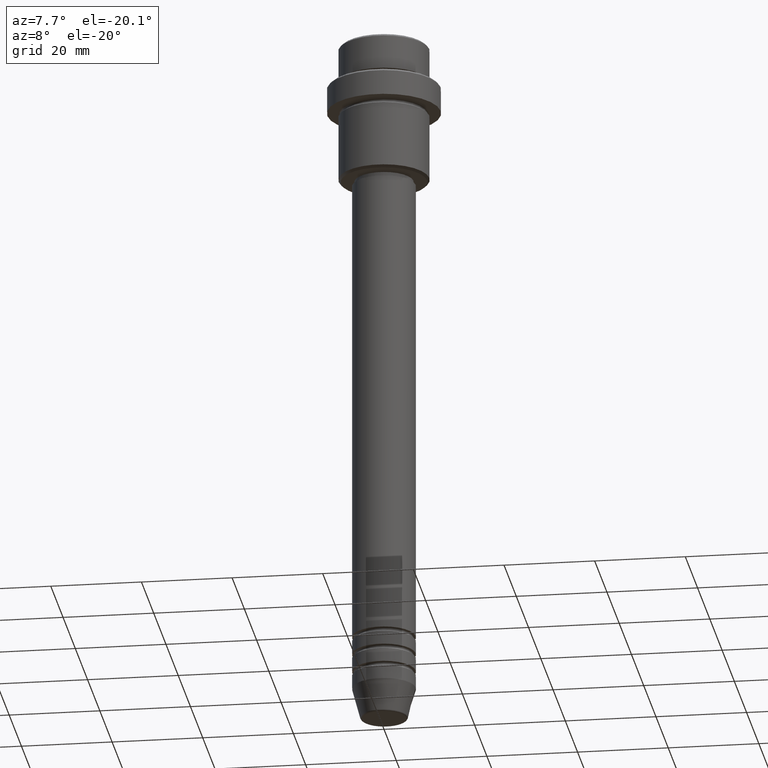
[diagram: clean part render]
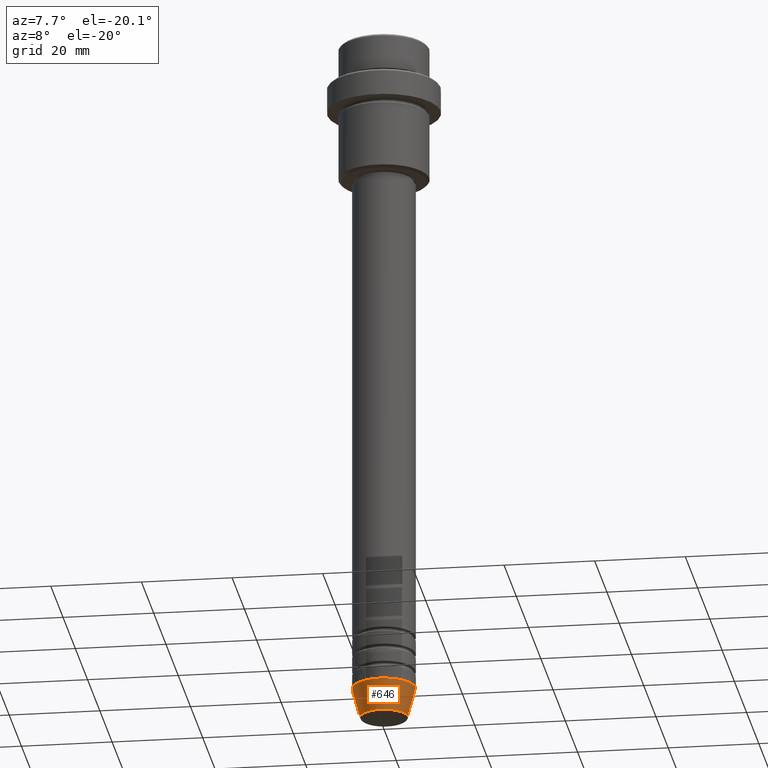
[diagram: same view with one face highlighted and labeled with its STEP entity id]
A machine part, auxiliary view. The second image highlights one B-rep face of the part: STEP entity #646.
In plain terms, the highlighted conical surface has half-angle 15 deg.
Its self-contained STEP definition (entity closure, byte-faithful):
#37 = CIRCLE ( 'NONE', #495, 5.223655072137196598 ) ;
#67 = VERTEX_POINT ( 'NONE', #747 ) ;
#76 = CARTESIAN_POINT ( 'NONE',  ( 0.000000000000000000, 0.000000000000000000, -149.0000000000000000 ) ) ;
#106 = CONICAL_SURFACE ( 'NONE', #1072, 7.000000000000000000, 0.2617993877991500740 ) ;
#205 = LINE ( 'NONE', #430, #340 ) ;
#305 = DIRECTION ( 'NONE',  ( -0.000000000000000000, -0.000000000000000000, 1.000000000000000000 ) ) ;
#332 = EDGE_CURVE ( 'NONE', #852, #1339, #37, .T. ) ;
#340 = VECTOR ( 'NONE', #1302, 1000.000000000000000 ) ;
#400 = DIRECTION ( 'NONE',  ( 1.000000000000000000, 0.000000000000000000, 0.000000000000000000 ) ) ;
#430 = CARTESIAN_POINT ( 'NONE',  ( -7.000000000000000000, 8.572527594031473190E-16, -149.0000000000000000 ) ) ;
#495 = AXIS2_PLACEMENT_3D ( 'NONE', #644, #305, #400 ) ;
#497 = AXIS2_PLACEMENT_3D ( 'NONE', #1382, #1149, #835 ) ;
#509 = FACE_OUTER_BOUND ( 'NONE', #915, .T. ) ;
#549 = DIRECTION ( 'NONE',  ( 0.2588190451025213501, 0.000000000000000000, 0.9659258262890680902 ) ) ;
#576 = ORIENTED_EDGE ( 'NONE', *, *, #663, .T. ) ;
#584 = CARTESIAN_POINT ( 'NONE',  ( -7.000000000000000000, 8.572527594031473190E-16, -149.0000000000000000 ) ) ;
#605 = EDGE_CURVE ( 'NONE', #778, #67, #1053, .T. ) ;
#644 = CARTESIAN_POINT ( 'NONE',  ( 0.000000000000000000, 0.000000000000000000, -155.6294095225512137 ) ) ;
#646 = ADVANCED_FACE ( 'NONE', ( #509 ), #106, .T. ) ;
#663 = EDGE_CURVE ( 'NONE', #1339, #67, #777, .T. ) ;
#719 = VECTOR ( 'NONE', #549, 1000.000000000000000 ) ;
#747 = CARTESIAN_POINT ( 'NONE',  ( 7.000000000000000000, 0.000000000000000000, -149.0000000000000000 ) ) ;
#777 = LINE ( 'NONE', #873, #719 ) ;
#778 = VERTEX_POINT ( 'NONE', #584 ) ;
#798 = CARTESIAN_POINT ( 'NONE',  ( -5.223655072137196598, 7.484830028987062146E-16, -155.6294095225512137 ) ) ;
#835 = DIRECTION ( 'NONE',  ( 1.000000000000000000, 0.000000000000000000, 0.000000000000000000 ) ) ;
#852 = VERTEX_POINT ( 'NONE', #798 ) ;
#873 = CARTESIAN_POINT ( 'NONE',  ( 7.000000000000000000, 0.000000000000000000, -149.0000000000000000 ) ) ;
#887 = CARTESIAN_POINT ( 'NONE',  ( 5.223655072137196598, 0.000000000000000000, -155.6294095225512137 ) ) ;
#915 = EDGE_LOOP ( 'NONE', ( #1362, #1032, #576, #1243 ) ) ;
#933 = DIRECTION ( 'NONE',  ( -0.000000000000000000, -0.000000000000000000, 1.000000000000000000 ) ) ;
#1032 = ORIENTED_EDGE ( 'NONE', *, *, #332, .T. ) ;
#1053 = CIRCLE ( 'NONE', #497, 7.000000000000000000 ) ;
#1072 = AXIS2_PLACEMENT_3D ( 'NONE', #76, #933, #1376 ) ;
#1149 = DIRECTION ( 'NONE',  ( -0.000000000000000000, -0.000000000000000000, 1.000000000000000000 ) ) ;
#1157 = EDGE_CURVE ( 'NONE', #852, #778, #205, .T. ) ;
#1243 = ORIENTED_EDGE ( 'NONE', *, *, #605, .F. ) ;
#1302 = DIRECTION ( 'NONE',  ( -0.2588190451025213501, 3.169619151431772337E-17, 0.9659258262890680902 ) ) ;
#1339 = VERTEX_POINT ( 'NONE', #887 ) ;
#1362 = ORIENTED_EDGE ( 'NONE', *, *, #1157, .F. ) ;
#1376 = DIRECTION ( 'NONE',  ( 1.000000000000000000, 0.000000000000000000, 0.000000000000000000 ) ) ;
#1382 = CARTESIAN_POINT ( 'NONE',  ( 0.000000000000000000, 0.000000000000000000, -149.0000000000000000 ) ) ;